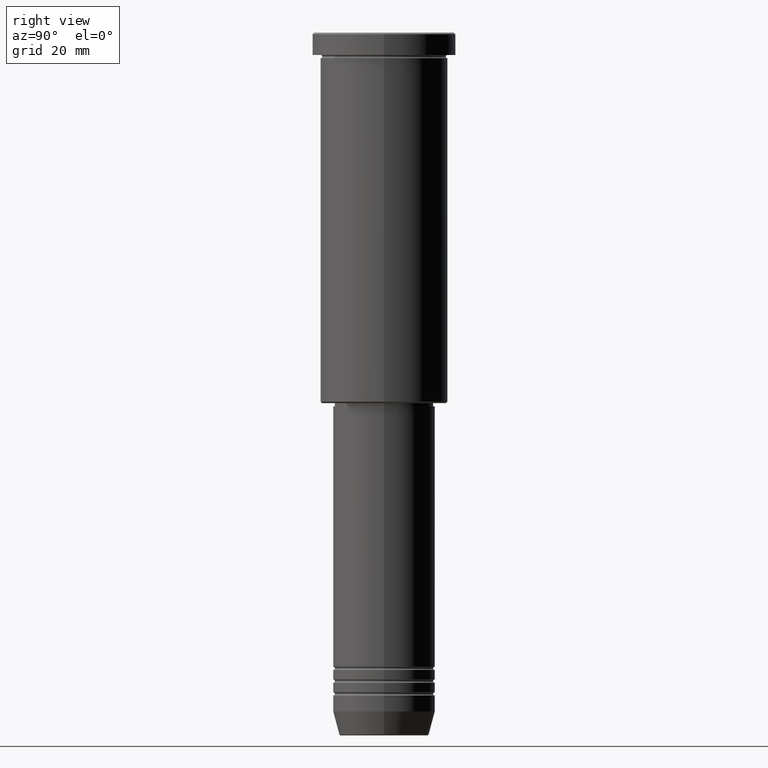
[diagram: clean part render]
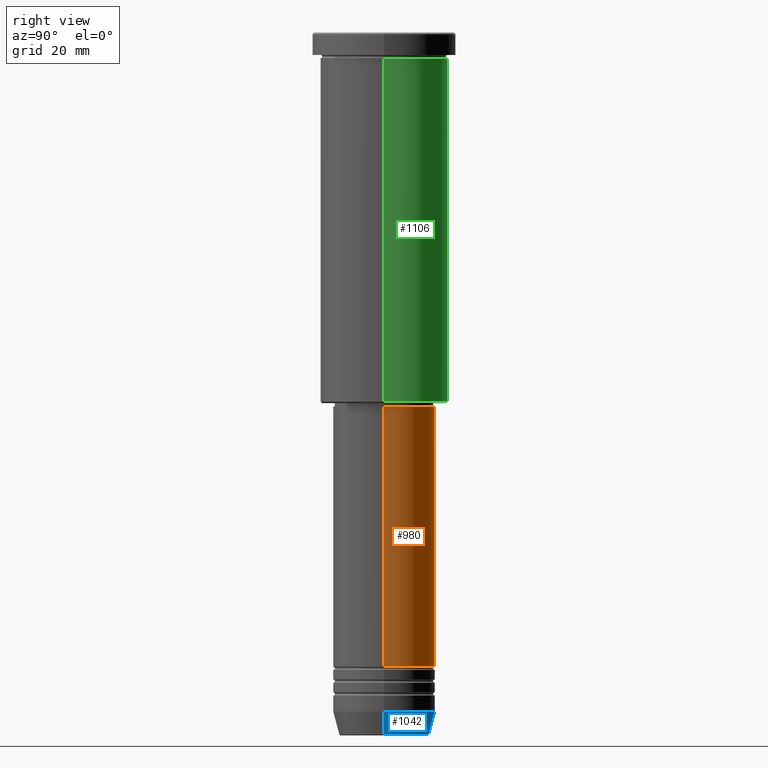
[diagram: same view with three faces highlighted in distinct colors, each labeled with its STEP entity id]
A machine part, right view with three faces highlighted in distinct colors.
Their STEP definitions:

[orange] entity #980 — the highlighted cylindrical surface (partial cylindrical patch) has radius 16 mm, axis along (-0, -0, 1).
#35 = LINE ( 'NONE', #503, #773 ) ;
#54 = VERTEX_POINT ( 'NONE', #1101 ) ;
#68 = EDGE_CURVE ( 'NONE', #54, #457, #349, .T. ) ;
#73 = DIRECTION ( 'NONE',  ( 1.000000000000000000, 0.000000000000000000, 0.000000000000000000 ) ) ;
#81 = CIRCLE ( 'NONE', #260, 16.00000000000000000 ) ;
#92 = CARTESIAN_POINT ( 'NONE',  ( 0.000000000000000000, 0.000000000000000000, 0.000000000000000000 ) ) ;
#147 = ORIENTED_EDGE ( 'NONE', *, *, #68, .T. ) ;
#194 = CARTESIAN_POINT ( 'NONE',  ( 0.000000000000000000, 0.000000000000000000, -198.4999999999999716 ) ) ;
#220 = EDGE_CURVE ( 'NONE', #54, #610, #35, .T. ) ;
#260 = AXIS2_PLACEMENT_3D ( 'NONE', #613, #896, #73 ) ;
#307 = DIRECTION ( 'NONE',  ( -0.000000000000000000, -0.000000000000000000, 1.000000000000000000 ) ) ;
#346 = EDGE_CURVE ( 'NONE', #457, #448, #725, .T. ) ;
#349 = CIRCLE ( 'NONE', #428, 16.00000000000000000 ) ;
#353 = AXIS2_PLACEMENT_3D ( 'NONE', #92, #643, #646 ) ;
#365 = ORIENTED_EDGE ( 'NONE', *, *, #346, .T. ) ;
#397 = EDGE_LOOP ( 'NONE', ( #147, #365, #1009, #966 ) ) ;
#428 = AXIS2_PLACEMENT_3D ( 'NONE', #194, #307, #675 ) ;
#448 = VERTEX_POINT ( 'NONE', #1095 ) ;
#457 = VERTEX_POINT ( 'NONE', #909 ) ;
#503 = CARTESIAN_POINT ( 'NONE',  ( 16.00000000000000000, 0.000000000000000000, 0.000000000000000000 ) ) ;
#561 = CYLINDRICAL_SURFACE ( 'NONE', #353, 16.00000000000000000 ) ;
#610 = VERTEX_POINT ( 'NONE', #673 ) ;
#613 = CARTESIAN_POINT ( 'NONE',  ( 0.000000000000000000, 0.000000000000000000, -117.0000000000000142 ) ) ;
#643 = DIRECTION ( 'NONE',  ( -0.000000000000000000, -0.000000000000000000, 1.000000000000000000 ) ) ;
#646 = DIRECTION ( 'NONE',  ( 1.000000000000000000, 0.000000000000000000, 0.000000000000000000 ) ) ;
#650 = FACE_OUTER_BOUND ( 'NONE', #397, .T. ) ;
#673 = CARTESIAN_POINT ( 'NONE',  ( 16.00000000000000000, 0.000000000000000000, -117.0000000000000142 ) ) ;
#675 = DIRECTION ( 'NONE',  ( 1.000000000000000000, 0.000000000000000000, 0.000000000000000000 ) ) ;
#725 = LINE ( 'NONE', #1055, #1006 ) ;
#773 = VECTOR ( 'NONE', #869, 1000.000000000000000 ) ;
#869 = DIRECTION ( 'NONE',  ( -0.000000000000000000, -0.000000000000000000, 1.000000000000000000 ) ) ;
#894 = EDGE_CURVE ( 'NONE', #610, #448, #81, .T. ) ;
#896 = DIRECTION ( 'NONE',  ( -0.000000000000000000, -0.000000000000000000, 1.000000000000000000 ) ) ;
#909 = CARTESIAN_POINT ( 'NONE',  ( -16.00000000000000000, 1.959434878635765131E-15, -198.4999999999999716 ) ) ;
#966 = ORIENTED_EDGE ( 'NONE', *, *, #220, .F. ) ;
#980 = ADVANCED_FACE ( 'NONE', ( #650 ), #561, .T. ) ;
#1006 = VECTOR ( 'NONE', #1159, 1000.000000000000000 ) ;
#1009 = ORIENTED_EDGE ( 'NONE', *, *, #894, .F. ) ;
#1055 = CARTESIAN_POINT ( 'NONE',  ( -16.00000000000000000, 1.959434878635765131E-15, 0.000000000000000000 ) ) ;
#1095 = CARTESIAN_POINT ( 'NONE',  ( -16.00000000000000000, 1.959434878635765131E-15, -117.0000000000000142 ) ) ;
#1101 = CARTESIAN_POINT ( 'NONE',  ( 16.00000000000000000, 0.000000000000000000, -198.4999999999999716 ) ) ;
#1159 = DIRECTION ( 'NONE',  ( -0.000000000000000000, -0.000000000000000000, 1.000000000000000000 ) ) ;

[blue] entity #1042 — the highlighted conical surface has half-angle 15 deg.
#4 = VECTOR ( 'NONE', #206, 1000.000000000000000 ) ;
#19 = LINE ( 'NONE', #396, #4 ) ;
#23 = DIRECTION ( 'NONE',  ( 1.000000000000000000, 0.000000000000000000, 0.000000000000000000 ) ) ;
#27 = AXIS2_PLACEMENT_3D ( 'NONE', #995, #30, #999 ) ;
#30 = DIRECTION ( 'NONE',  ( -0.000000000000000000, -0.000000000000000000, 1.000000000000000000 ) ) ;
#62 = AXIS2_PLACEMENT_3D ( 'NONE', #512, #407, #876 ) ;
#87 = EDGE_CURVE ( 'NONE', #1074, #1079, #19, .T. ) ;
#88 = DIRECTION ( 'NONE',  ( -0.000000000000000000, -0.000000000000000000, 1.000000000000000000 ) ) ;
#96 = CARTESIAN_POINT ( 'NONE',  ( -14.08968047592163941, 1.842461544110202058E-15, -219.6294095225512137 ) ) ;
#125 = AXIS2_PLACEMENT_3D ( 'NONE', #391, #88, #23 ) ;
#138 = VECTOR ( 'NONE', #904, 1000.000000000000000 ) ;
#146 = VERTEX_POINT ( 'NONE', #96 ) ;
#206 = DIRECTION ( 'NONE',  ( 0.2588190451025213501, 0.000000000000000000, 0.9659258262890680902 ) ) ;
#231 = VERTEX_POINT ( 'NONE', #592 ) ;
#282 = EDGE_CURVE ( 'NONE', #1079, #231, #466, .T. ) ;
#292 = FACE_OUTER_BOUND ( 'NONE', #618, .T. ) ;
#310 = CARTESIAN_POINT ( 'NONE',  ( 14.08968047592163941, 0.000000000000000000, -219.6294095225512137 ) ) ;
#391 = CARTESIAN_POINT ( 'NONE',  ( 0.000000000000000000, 0.000000000000000000, -212.5000000000000000 ) ) ;
#396 = CARTESIAN_POINT ( 'NONE',  ( 16.00000000000000000, 0.000000000000000000, -212.5000000000000000 ) ) ;
#407 = DIRECTION ( 'NONE',  ( -0.000000000000000000, -0.000000000000000000, 1.000000000000000000 ) ) ;
#416 = ORIENTED_EDGE ( 'NONE', *, *, #517, .T. ) ;
#427 = EDGE_CURVE ( 'NONE', #146, #231, #893, .T. ) ;
#466 = CIRCLE ( 'NONE', #62, 16.00000000000000000 ) ;
#512 = CARTESIAN_POINT ( 'NONE',  ( 0.000000000000000000, 0.000000000000000000, -212.5000000000000000 ) ) ;
#517 = EDGE_CURVE ( 'NONE', #1074, #146, #1028, .T. ) ;
#544 = CARTESIAN_POINT ( 'NONE',  ( -16.00000000000000000, 1.959434878635765131E-15, -212.5000000000000000 ) ) ;
#592 = CARTESIAN_POINT ( 'NONE',  ( -16.00000000000000000, 1.959434878635765131E-15, -212.5000000000000000 ) ) ;
#618 = EDGE_LOOP ( 'NONE', ( #416, #781, #636, #690 ) ) ;
#636 = ORIENTED_EDGE ( 'NONE', *, *, #282, .F. ) ;
#690 = ORIENTED_EDGE ( 'NONE', *, *, #87, .F. ) ;
#781 = ORIENTED_EDGE ( 'NONE', *, *, #427, .T. ) ;
#849 = CARTESIAN_POINT ( 'NONE',  ( 16.00000000000000000, 0.000000000000000000, -212.5000000000000000 ) ) ;
#876 = DIRECTION ( 'NONE',  ( 1.000000000000000000, 0.000000000000000000, 0.000000000000000000 ) ) ;
#893 = LINE ( 'NONE', #544, #138 ) ;
#904 = DIRECTION ( 'NONE',  ( -0.2588190451025213501, 3.169619151431772337E-17, 0.9659258262890680902 ) ) ;
#974 = CONICAL_SURFACE ( 'NONE', #125, 16.00000000000000000, 0.2617993877991500740 ) ;
#995 = CARTESIAN_POINT ( 'NONE',  ( 0.000000000000000000, 0.000000000000000000, -219.6294095225512137 ) ) ;
#999 = DIRECTION ( 'NONE',  ( 1.000000000000000000, 0.000000000000000000, 0.000000000000000000 ) ) ;
#1028 = CIRCLE ( 'NONE', #27, 14.08968047592163941 ) ;
#1042 = ADVANCED_FACE ( 'NONE', ( #292 ), #974, .T. ) ;
#1074 = VERTEX_POINT ( 'NONE', #310 ) ;
#1079 = VERTEX_POINT ( 'NONE', #849 ) ;

[green] entity #1106 — the highlighted cylindrical surface (partial cylindrical patch) has radius 20 mm, axis along (-0, -0, 1).
#1 = VERTEX_POINT ( 'NONE', #1114 ) ;
#15 = CARTESIAN_POINT ( 'NONE',  ( -20.00000000000000355, 2.449293598294706907E-15, 0.000000000000000000 ) ) ;
#95 = EDGE_CURVE ( 'NONE', #1, #367, #923, .T. ) ;
#166 = CARTESIAN_POINT ( 'NONE',  ( -20.00000000000000000, 2.449293598294706513E-15, -7.999999999999994671 ) ) ;
#184 = ORIENTED_EDGE ( 'NONE', *, *, #95, .T. ) ;
#259 = EDGE_LOOP ( 'NONE', ( #731, #184, #342, #527 ) ) ;
#294 = AXIS2_PLACEMENT_3D ( 'NONE', #347, #516, #608 ) ;
#301 = CARTESIAN_POINT ( 'NONE',  ( 20.00000000000000355, 0.000000000000000000, -115.4999999999999432 ) ) ;
#337 = EDGE_CURVE ( 'NONE', #1048, #358, #1077, .T. ) ;
#341 = CARTESIAN_POINT ( 'NONE',  ( 20.00000000000000000, 0.000000000000000000, -7.999999999999994671 ) ) ;
#342 = ORIENTED_EDGE ( 'NONE', *, *, #772, .F. ) ;
#347 = CARTESIAN_POINT ( 'NONE',  ( 0.000000000000000000, 0.000000000000000000, -7.999999999999994671 ) ) ;
#348 = DIRECTION ( 'NONE',  ( -0.000000000000000000, -0.000000000000000000, 1.000000000000000000 ) ) ;
#358 = VERTEX_POINT ( 'NONE', #341 ) ;
#367 = VERTEX_POINT ( 'NONE', #166 ) ;
#373 = CIRCLE ( 'NONE', #294, 20.00000000000000000 ) ;
#421 = DIRECTION ( 'NONE',  ( -0.000000000000000000, -0.000000000000000000, 1.000000000000000000 ) ) ;
#516 = DIRECTION ( 'NONE',  ( -0.000000000000000000, -0.000000000000000000, 1.000000000000000000 ) ) ;
#527 = ORIENTED_EDGE ( 'NONE', *, *, #337, .F. ) ;
#571 = DIRECTION ( 'NONE',  ( -1.000000000000000000, 0.000000000000000000, 0.000000000000000000 ) ) ;
#576 = CYLINDRICAL_SURFACE ( 'NONE', #798, 20.00000000000000355 ) ;
#608 = DIRECTION ( 'NONE',  ( 1.000000000000000000, 0.000000000000000000, 0.000000000000000000 ) ) ;
#614 = VECTOR ( 'NONE', #1109, 1000.000000000000000 ) ;
#672 = DIRECTION ( 'NONE',  ( 1.000000000000000000, 0.000000000000000000, 0.000000000000000000 ) ) ;
#720 = AXIS2_PLACEMENT_3D ( 'NONE', #1140, #787, #571 ) ;
#731 = ORIENTED_EDGE ( 'NONE', *, *, #1163, .T. ) ;
#758 = CIRCLE ( 'NONE', #720, 20.00000000000000355 ) ;
#772 = EDGE_CURVE ( 'NONE', #358, #367, #373, .T. ) ;
#782 = CARTESIAN_POINT ( 'NONE',  ( 0.000000000000000000, 0.000000000000000000, 0.000000000000000000 ) ) ;
#787 = DIRECTION ( 'NONE',  ( -0.000000000000000000, -0.000000000000000000, 1.000000000000000000 ) ) ;
#798 = AXIS2_PLACEMENT_3D ( 'NONE', #782, #421, #672 ) ;
#897 = VECTOR ( 'NONE', #348, 1000.000000000000000 ) ;
#923 = LINE ( 'NONE', #15, #614 ) ;
#979 = CARTESIAN_POINT ( 'NONE',  ( 20.00000000000000355, 0.000000000000000000, 0.000000000000000000 ) ) ;
#1030 = FACE_OUTER_BOUND ( 'NONE', #259, .T. ) ;
#1048 = VERTEX_POINT ( 'NONE', #301 ) ;
#1077 = LINE ( 'NONE', #979, #897 ) ;
#1106 = ADVANCED_FACE ( 'NONE', ( #1030 ), #576, .T. ) ;
#1109 = DIRECTION ( 'NONE',  ( -0.000000000000000000, -0.000000000000000000, 1.000000000000000000 ) ) ;
#1114 = CARTESIAN_POINT ( 'NONE',  ( -20.00000000000000355, 2.449293598294706907E-15, -115.4999999999999432 ) ) ;
#1140 = CARTESIAN_POINT ( 'NONE',  ( 0.000000000000000000, 0.000000000000000000, -115.4999999999999432 ) ) ;
#1163 = EDGE_CURVE ( 'NONE', #1048, #1, #758, .T. ) ;